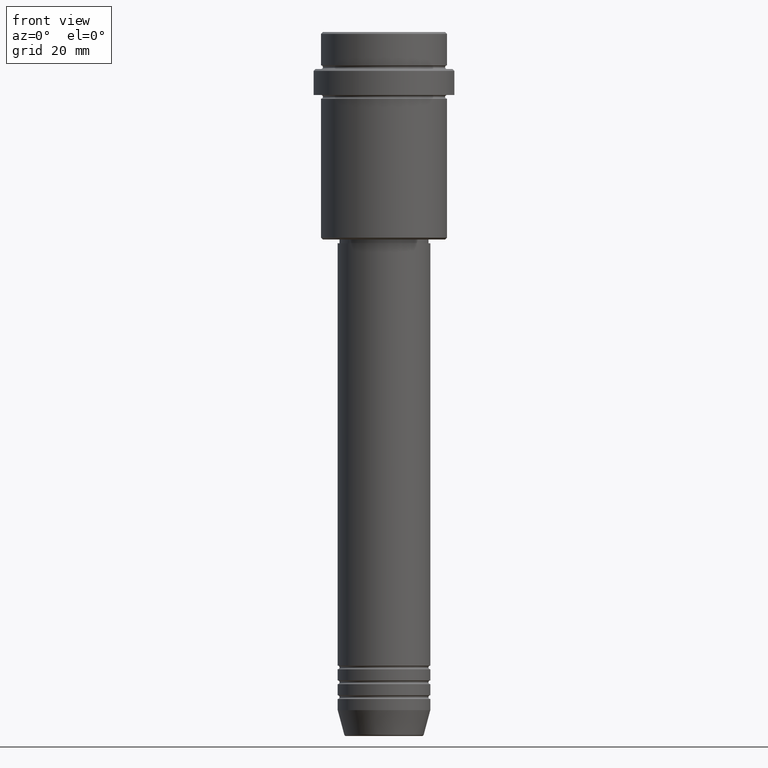
[diagram: clean part render]
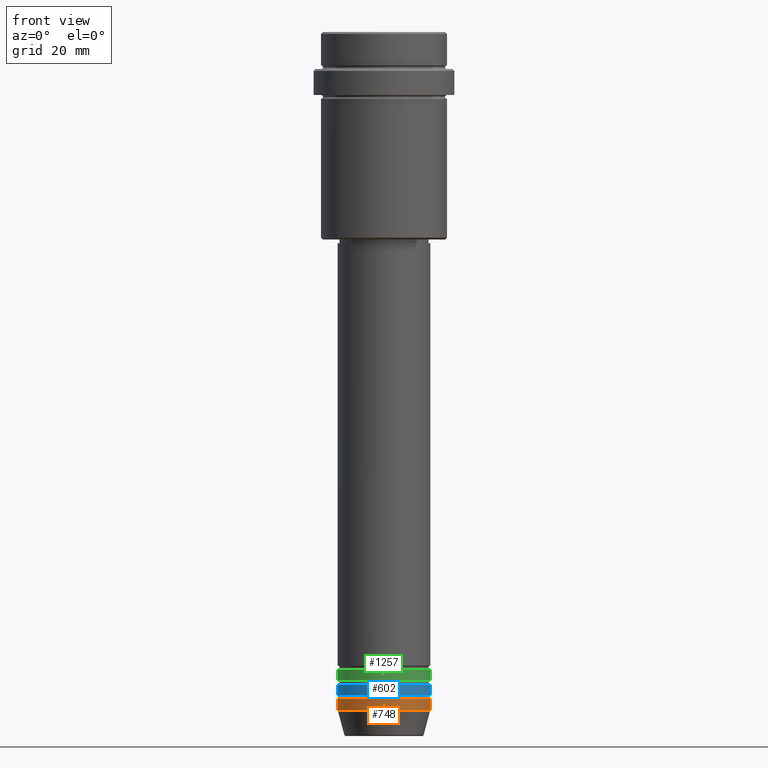
[diagram: same view with three faces highlighted in distinct colors, each labeled with its STEP entity id]
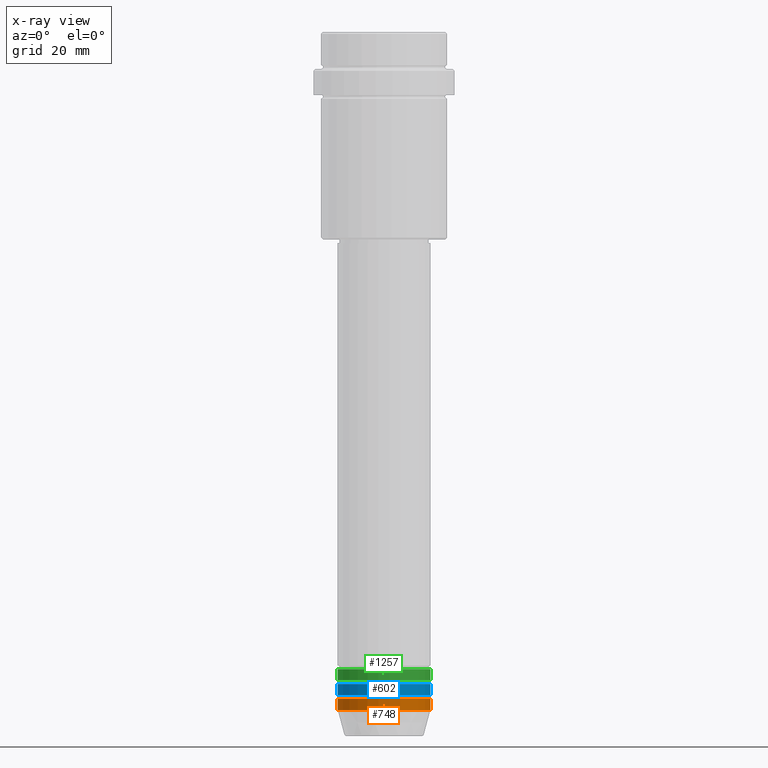
[diagram: x-ray of the same camera — body ghosted, the three highlighted faces saturated]
A machine part, front view with three faces highlighted in distinct colors.
The next image is the same camera in x-ray (body ghosted, the three faces saturated) — at least one of them is partly hidden behind the body in this view.
Their STEP definitions:

[orange] entity #748 — the highlighted cylindrical surface (partial cylindrical patch) has radius 12.5 mm, axis along (-0, -0, 1).
#2 = CARTESIAN_POINT ( 'NONE',  ( -12.50000000000000000, 1.530808498934191521E-15, -183.0000000000000000 ) ) ;
#26 = CARTESIAN_POINT ( 'NONE',  ( 0.000000000000000000, 0.000000000000000000, -180.0000000000000000 ) ) ;
#31 = DIRECTION ( 'NONE',  ( -0.000000000000000000, -0.000000000000000000, 1.000000000000000000 ) ) ;
#106 = AXIS2_PLACEMENT_3D ( 'NONE', #26, #468, #1335 ) ;
#159 = CARTESIAN_POINT ( 'NONE',  ( -12.50000000000000000, 1.530808498934191521E-15, 0.000000000000000000 ) ) ;
#160 = CARTESIAN_POINT ( 'NONE',  ( 0.000000000000000000, 0.000000000000000000, 0.000000000000000000 ) ) ;
#213 = EDGE_LOOP ( 'NONE', ( #969, #955, #514, #641 ) ) ;
#298 = EDGE_CURVE ( 'NONE', #1090, #1125, #885, .T. ) ;
#344 = DIRECTION ( 'NONE',  ( 1.000000000000000000, 0.000000000000000000, 0.000000000000000000 ) ) ;
#366 = CIRCLE ( 'NONE', #106, 12.50000000000000000 ) ;
#369 = VERTEX_POINT ( 'NONE', #2 ) ;
#468 = DIRECTION ( 'NONE',  ( -0.000000000000000000, -0.000000000000000000, 1.000000000000000000 ) ) ;
#477 = AXIS2_PLACEMENT_3D ( 'NONE', #160, #1154, #611 ) ;
#514 = ORIENTED_EDGE ( 'NONE', *, *, #298, .T. ) ;
#523 = VERTEX_POINT ( 'NONE', #710 ) ;
#535 = EDGE_CURVE ( 'NONE', #369, #1090, #833, .T. ) ;
#611 = DIRECTION ( 'NONE',  ( 1.000000000000000000, 0.000000000000000000, 0.000000000000000000 ) ) ;
#641 = ORIENTED_EDGE ( 'NONE', *, *, #1273, .F. ) ;
#710 = CARTESIAN_POINT ( 'NONE',  ( -12.50000000000000000, 1.530808498934191521E-15, -180.0000000000000000 ) ) ;
#729 = CARTESIAN_POINT ( 'NONE',  ( 12.50000000000000000, 0.000000000000000000, -183.0000000000000000 ) ) ;
#748 = ADVANCED_FACE ( 'NONE', ( #950 ), #1272, .T. ) ;
#793 = DIRECTION ( 'NONE',  ( -0.000000000000000000, -0.000000000000000000, 1.000000000000000000 ) ) ;
#813 = LINE ( 'NONE', #159, #1051 ) ;
#833 = CIRCLE ( 'NONE', #1140, 12.50000000000000000 ) ;
#855 = VECTOR ( 'NONE', #879, 1000.000000000000000 ) ;
#879 = DIRECTION ( 'NONE',  ( -0.000000000000000000, -0.000000000000000000, 1.000000000000000000 ) ) ;
#885 = LINE ( 'NONE', #1079, #855 ) ;
#889 = CARTESIAN_POINT ( 'NONE',  ( 12.50000000000000000, 0.000000000000000000, -180.0000000000000000 ) ) ;
#950 = FACE_OUTER_BOUND ( 'NONE', #213, .T. ) ;
#955 = ORIENTED_EDGE ( 'NONE', *, *, #535, .T. ) ;
#969 = ORIENTED_EDGE ( 'NONE', *, *, #1187, .F. ) ;
#1051 = VECTOR ( 'NONE', #31, 1000.000000000000000 ) ;
#1079 = CARTESIAN_POINT ( 'NONE',  ( 12.50000000000000000, 0.000000000000000000, 0.000000000000000000 ) ) ;
#1090 = VERTEX_POINT ( 'NONE', #729 ) ;
#1125 = VERTEX_POINT ( 'NONE', #889 ) ;
#1140 = AXIS2_PLACEMENT_3D ( 'NONE', #1322, #793, #344 ) ;
#1154 = DIRECTION ( 'NONE',  ( -0.000000000000000000, -0.000000000000000000, 1.000000000000000000 ) ) ;
#1187 = EDGE_CURVE ( 'NONE', #369, #523, #813, .T. ) ;
#1272 = CYLINDRICAL_SURFACE ( 'NONE', #477, 12.50000000000000000 ) ;
#1273 = EDGE_CURVE ( 'NONE', #523, #1125, #366, .T. ) ;
#1322 = CARTESIAN_POINT ( 'NONE',  ( 0.000000000000000000, 0.000000000000000000, -183.0000000000000000 ) ) ;
#1335 = DIRECTION ( 'NONE',  ( 1.000000000000000000, 0.000000000000000000, 0.000000000000000000 ) ) ;

[blue] entity #602 — the highlighted cylindrical surface (partial cylindrical patch) has radius 12.5 mm, axis along (-0, -0, 1).
#100 = ORIENTED_EDGE ( 'NONE', *, *, #425, .T. ) ;
#195 = EDGE_LOOP ( 'NONE', ( #1398, #302, #100, #751 ) ) ;
#251 = AXIS2_PLACEMENT_3D ( 'NONE', #1039, #843, #626 ) ;
#302 = ORIENTED_EDGE ( 'NONE', *, *, #797, .T. ) ;
#357 = DIRECTION ( 'NONE',  ( -0.000000000000000000, -0.000000000000000000, 1.000000000000000000 ) ) ;
#377 = DIRECTION ( 'NONE',  ( -0.000000000000000000, -0.000000000000000000, 1.000000000000000000 ) ) ;
#394 = DIRECTION ( 'NONE',  ( 1.000000000000000000, 0.000000000000000000, 0.000000000000000000 ) ) ;
#402 = CYLINDRICAL_SURFACE ( 'NONE', #451, 12.50000000000000000 ) ;
#416 = LINE ( 'NONE', #1074, #579 ) ;
#425 = EDGE_CURVE ( 'NONE', #1366, #831, #594, .T. ) ;
#451 = AXIS2_PLACEMENT_3D ( 'NONE', #503, #377, #1248 ) ;
#454 = CIRCLE ( 'NONE', #251, 12.50000000000000000 ) ;
#469 = CARTESIAN_POINT ( 'NONE',  ( 12.50000000000000000, 0.000000000000000000, 0.000000000000000000 ) ) ;
#503 = CARTESIAN_POINT ( 'NONE',  ( 0.000000000000000000, 0.000000000000000000, 0.000000000000000000 ) ) ;
#518 = FACE_OUTER_BOUND ( 'NONE', #195, .T. ) ;
#553 = CIRCLE ( 'NONE', #788, 12.50000000000000000 ) ;
#579 = VECTOR ( 'NONE', #848, 1000.000000000000000 ) ;
#594 = LINE ( 'NONE', #469, #1186 ) ;
#602 = ADVANCED_FACE ( 'NONE', ( #518 ), #402, .T. ) ;
#618 = DIRECTION ( 'NONE',  ( -0.000000000000000000, -0.000000000000000000, 1.000000000000000000 ) ) ;
#626 = DIRECTION ( 'NONE',  ( 1.000000000000000000, 0.000000000000000000, 0.000000000000000000 ) ) ;
#704 = VERTEX_POINT ( 'NONE', #1222 ) ;
#733 = CARTESIAN_POINT ( 'NONE',  ( 0.000000000000000000, 0.000000000000000000, -178.9999999999999147 ) ) ;
#751 = ORIENTED_EDGE ( 'NONE', *, *, #789, .F. ) ;
#788 = AXIS2_PLACEMENT_3D ( 'NONE', #733, #618, #394 ) ;
#789 = EDGE_CURVE ( 'NONE', #1277, #831, #454, .T. ) ;
#797 = EDGE_CURVE ( 'NONE', #704, #1366, #553, .T. ) ;
#831 = VERTEX_POINT ( 'NONE', #849 ) ;
#843 = DIRECTION ( 'NONE',  ( -0.000000000000000000, -0.000000000000000000, 1.000000000000000000 ) ) ;
#848 = DIRECTION ( 'NONE',  ( -0.000000000000000000, -0.000000000000000000, 1.000000000000000000 ) ) ;
#849 = CARTESIAN_POINT ( 'NONE',  ( 12.50000000000000000, 0.000000000000000000, -175.9999999999998863 ) ) ;
#1039 = CARTESIAN_POINT ( 'NONE',  ( 0.000000000000000000, 0.000000000000000000, -175.9999999999998863 ) ) ;
#1074 = CARTESIAN_POINT ( 'NONE',  ( -12.50000000000000000, 1.530808498934191521E-15, 0.000000000000000000 ) ) ;
#1186 = VECTOR ( 'NONE', #357, 1000.000000000000000 ) ;
#1222 = CARTESIAN_POINT ( 'NONE',  ( -12.50000000000000000, 1.530808498934191521E-15, -178.9999999999999147 ) ) ;
#1248 = DIRECTION ( 'NONE',  ( 1.000000000000000000, 0.000000000000000000, 0.000000000000000000 ) ) ;
#1277 = VERTEX_POINT ( 'NONE', #1289 ) ;
#1289 = CARTESIAN_POINT ( 'NONE',  ( -12.50000000000000000, 1.530808498934191521E-15, -175.9999999999998863 ) ) ;
#1347 = EDGE_CURVE ( 'NONE', #704, #1277, #416, .T. ) ;
#1366 = VERTEX_POINT ( 'NONE', #1395 ) ;
#1395 = CARTESIAN_POINT ( 'NONE',  ( 12.50000000000000000, 0.000000000000000000, -178.9999999999999147 ) ) ;
#1398 = ORIENTED_EDGE ( 'NONE', *, *, #1347, .F. ) ;

[green] entity #1257 — the highlighted cylindrical surface (partial cylindrical patch) has radius 12.5 mm, axis along (-0, -0, 1).
#20 = DIRECTION ( 'NONE',  ( -0.000000000000000000, -0.000000000000000000, 1.000000000000000000 ) ) ;
#54 = DIRECTION ( 'NONE',  ( -0.000000000000000000, -0.000000000000000000, 1.000000000000000000 ) ) ;
#79 = CARTESIAN_POINT ( 'NONE',  ( -12.50000000000000000, 1.530808498934191521E-15, -174.9999999999998863 ) ) ;
#114 = VERTEX_POINT ( 'NONE', #278 ) ;
#142 = DIRECTION ( 'NONE',  ( 1.000000000000000000, 0.000000000000000000, 0.000000000000000000 ) ) ;
#152 = CIRCLE ( 'NONE', #938, 12.50000000000000000 ) ;
#190 = LINE ( 'NONE', #945, #1160 ) ;
#198 = ORIENTED_EDGE ( 'NONE', *, *, #217, .T. ) ;
#200 = EDGE_CURVE ( 'NONE', #1295, #1153, #190, .T. ) ;
#217 = EDGE_CURVE ( 'NONE', #1295, #114, #152, .T. ) ;
#220 = EDGE_LOOP ( 'NONE', ( #358, #198, #1233, #1408 ) ) ;
#259 = CARTESIAN_POINT ( 'NONE',  ( 0.000000000000000000, 0.000000000000000000, -171.9999999999999147 ) ) ;
#278 = CARTESIAN_POINT ( 'NONE',  ( 12.50000000000000000, 0.000000000000000000, -174.9999999999998863 ) ) ;
#358 = ORIENTED_EDGE ( 'NONE', *, *, #200, .F. ) ;
#395 = DIRECTION ( 'NONE',  ( 1.000000000000000000, 0.000000000000000000, 0.000000000000000000 ) ) ;
#578 = CYLINDRICAL_SURFACE ( 'NONE', #1166, 12.50000000000000000 ) ;
#677 = AXIS2_PLACEMENT_3D ( 'NONE', #259, #1126, #142 ) ;
#697 = VECTOR ( 'NONE', #1358, 1000.000000000000000 ) ;
#820 = CARTESIAN_POINT ( 'NONE',  ( 12.50000000000000000, 0.000000000000000000, 0.000000000000000000 ) ) ;
#935 = DIRECTION ( 'NONE',  ( -0.000000000000000000, -0.000000000000000000, 1.000000000000000000 ) ) ;
#938 = AXIS2_PLACEMENT_3D ( 'NONE', #1066, #54, #395 ) ;
#945 = CARTESIAN_POINT ( 'NONE',  ( -12.50000000000000000, 1.530808498934191521E-15, 0.000000000000000000 ) ) ;
#1009 = CIRCLE ( 'NONE', #677, 12.50000000000000000 ) ;
#1011 = CARTESIAN_POINT ( 'NONE',  ( 0.000000000000000000, 0.000000000000000000, 0.000000000000000000 ) ) ;
#1038 = LINE ( 'NONE', #820, #697 ) ;
#1048 = CARTESIAN_POINT ( 'NONE',  ( 12.50000000000000000, 0.000000000000000000, -171.9999999999999147 ) ) ;
#1066 = CARTESIAN_POINT ( 'NONE',  ( 0.000000000000000000, 0.000000000000000000, -174.9999999999998863 ) ) ;
#1098 = VERTEX_POINT ( 'NONE', #1048 ) ;
#1126 = DIRECTION ( 'NONE',  ( -0.000000000000000000, -0.000000000000000000, 1.000000000000000000 ) ) ;
#1143 = CARTESIAN_POINT ( 'NONE',  ( -12.50000000000000000, 1.530808498934191521E-15, -171.9999999999999147 ) ) ;
#1153 = VERTEX_POINT ( 'NONE', #1143 ) ;
#1157 = EDGE_CURVE ( 'NONE', #114, #1098, #1038, .T. ) ;
#1160 = VECTOR ( 'NONE', #935, 1000.000000000000000 ) ;
#1166 = AXIS2_PLACEMENT_3D ( 'NONE', #1011, #20, #1331 ) ;
#1168 = EDGE_CURVE ( 'NONE', #1153, #1098, #1009, .T. ) ;
#1221 = FACE_OUTER_BOUND ( 'NONE', #220, .T. ) ;
#1233 = ORIENTED_EDGE ( 'NONE', *, *, #1157, .T. ) ;
#1257 = ADVANCED_FACE ( 'NONE', ( #1221 ), #578, .T. ) ;
#1295 = VERTEX_POINT ( 'NONE', #79 ) ;
#1331 = DIRECTION ( 'NONE',  ( 1.000000000000000000, 0.000000000000000000, 0.000000000000000000 ) ) ;
#1358 = DIRECTION ( 'NONE',  ( -0.000000000000000000, -0.000000000000000000, 1.000000000000000000 ) ) ;
#1408 = ORIENTED_EDGE ( 'NONE', *, *, #1168, .F. ) ;